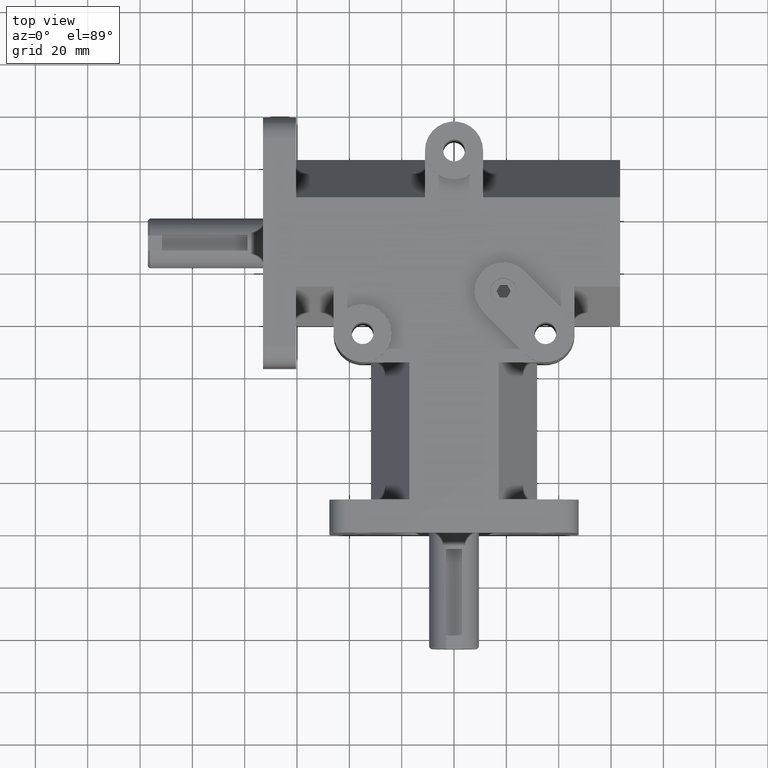
[diagram: clean part render]
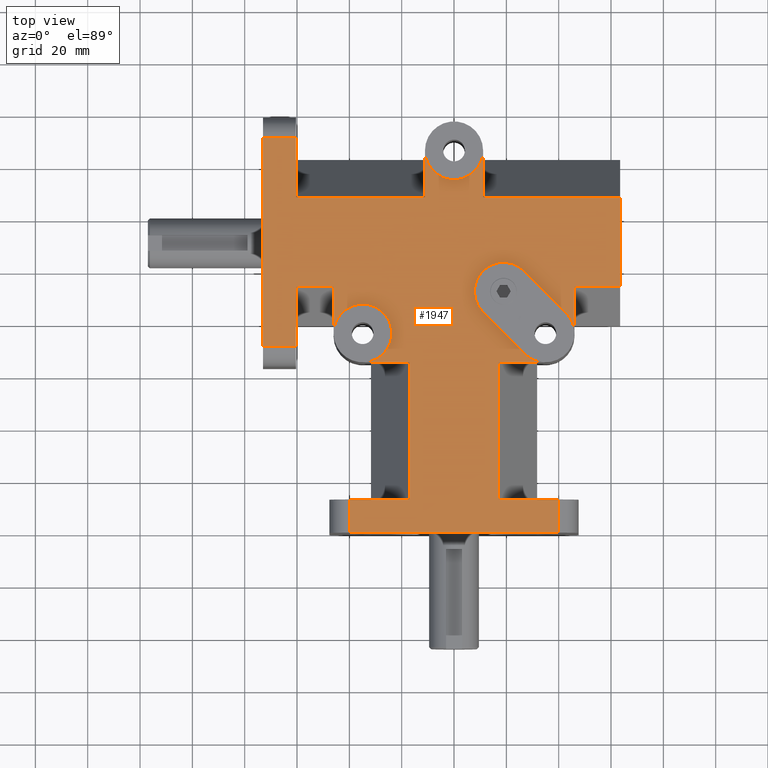
[diagram: same view with one face highlighted and labeled with its STEP entity id]
A machine part, top view. The second image highlights one B-rep face of the part: STEP entity #1947.
In plain terms, the highlighted planar face has unit normal (0, 0, 1).
Its self-contained STEP definition (entity closure, byte-faithful):
#72=PLANE('',#2121);
#165=FACE_OUTER_BOUND('',#290,.T.);
#290=EDGE_LOOP('',(#1488,#1489,#1490,#1491,#1492,#1493,#1494,#1495,#1496,
#1497,#1498,#1499,#1500,#1501,#1502,#1503,#1504,#1505,#1506,#1507,#1508,
#1509,#1510,#1511,#1512,#1513,#1514,#1515,#1516,#1517));
#416=LINE('',#2961,#607);
#421=LINE('',#2985,#612);
#426=LINE('',#3006,#617);
#428=LINE('',#3015,#619);
#431=LINE('',#3026,#622);
#439=LINE('',#3047,#630);
#441=LINE('',#3055,#632);
#442=LINE('',#3057,#633);
#443=LINE('',#3059,#634);
#444=LINE('',#3063,#635);
#445=LINE('',#3067,#636);
#446=LINE('',#3071,#637);
#447=LINE('',#3073,#638);
#448=LINE('',#3075,#639);
#449=LINE('',#3077,#640);
#450=LINE('',#3079,#641);
#451=LINE('',#3083,#642);
#452=LINE('',#3085,#643);
#453=LINE('',#3086,#644);
#454=LINE('',#3087,#645);
#455=LINE('',#3089,#646);
#456=LINE('',#3091,#647);
#457=LINE('',#3095,#648);
#458=LINE('',#3097,#649);
#459=LINE('',#3098,#650);
#607=VECTOR('',#2378,1.);
#612=VECTOR('',#2399,1.);
#617=VECTOR('',#2418,1.);
#619=VECTOR('',#2426,1.);
#622=VECTOR('',#2437,1.);
#630=VECTOR('',#2455,1.);
#632=VECTOR('',#2463,1.);
#633=VECTOR('',#2464,1.);
#634=VECTOR('',#2465,1.);
#635=VECTOR('',#2468,1.);
#636=VECTOR('',#2471,1.);
#637=VECTOR('',#2474,1.);
#638=VECTOR('',#2475,1.);
#639=VECTOR('',#2476,1.);
#640=VECTOR('',#2477,1.);
#641=VECTOR('',#2478,1.);
#642=VECTOR('',#2481,1.);
#643=VECTOR('',#2482,1.);
#644=VECTOR('',#2483,1.);
#645=VECTOR('',#2484,1.);
#646=VECTOR('',#2485,1.);
#647=VECTOR('',#2486,1.);
#648=VECTOR('',#2489,1.);
#649=VECTOR('',#2490,1.);
#650=VECTOR('',#2491,1.);
#816=CIRCLE('',#2122,11.1125);
#817=CIRCLE('',#2123,11.1125);
#818=CIRCLE('',#2124,11.1125);
#819=CIRCLE('',#2125,11.1125);
#820=CIRCLE('',#2126,11.1125);
#893=VERTEX_POINT('',#2954);
#896=VERTEX_POINT('',#2959);
#906=VERTEX_POINT('',#2982);
#907=VERTEX_POINT('',#2984);
#913=VERTEX_POINT('',#2999);
#916=VERTEX_POINT('',#3004);
#917=VERTEX_POINT('',#3008);
#920=VERTEX_POINT('',#3013);
#932=VERTEX_POINT('',#3045);
#935=VERTEX_POINT('',#3054);
#936=VERTEX_POINT('',#3056);
#937=VERTEX_POINT('',#3058);
#938=VERTEX_POINT('',#3060);
#939=VERTEX_POINT('',#3062);
#940=VERTEX_POINT('',#3064);
#941=VERTEX_POINT('',#3066);
#942=VERTEX_POINT('',#3068);
#943=VERTEX_POINT('',#3070);
#944=VERTEX_POINT('',#3072);
#945=VERTEX_POINT('',#3074);
#946=VERTEX_POINT('',#3076);
#947=VERTEX_POINT('',#3078);
#948=VERTEX_POINT('',#3080);
#949=VERTEX_POINT('',#3082);
#950=VERTEX_POINT('',#3084);
#951=VERTEX_POINT('',#3088);
#952=VERTEX_POINT('',#3090);
#953=VERTEX_POINT('',#3092);
#954=VERTEX_POINT('',#3094);
#955=VERTEX_POINT('',#3096);
#1102=EDGE_CURVE('',#896,#893,#416,.T.);
#1112=EDGE_CURVE('',#906,#907,#421,.T.);
#1122=EDGE_CURVE('',#916,#913,#426,.T.);
#1126=EDGE_CURVE('',#920,#917,#428,.T.);
#1131=EDGE_CURVE('',#893,#906,#431,.T.);
#1143=EDGE_CURVE('',#932,#916,#439,.T.);
#1147=EDGE_CURVE('',#935,#896,#441,.T.);
#1148=EDGE_CURVE('',#936,#935,#442,.T.);
#1149=EDGE_CURVE('',#937,#936,#443,.T.);
#1150=EDGE_CURVE('',#937,#938,#816,.T.);
#1151=EDGE_CURVE('',#938,#939,#444,.T.);
#1152=EDGE_CURVE('',#939,#940,#817,.T.);
#1153=EDGE_CURVE('',#940,#941,#445,.T.);
#1154=EDGE_CURVE('',#941,#942,#818,.T.);
#1155=EDGE_CURVE('',#943,#942,#446,.T.);
#1156=EDGE_CURVE('',#944,#943,#447,.T.);
#1157=EDGE_CURVE('',#944,#945,#448,.T.);
#1158=EDGE_CURVE('',#946,#945,#449,.T.);
#1159=EDGE_CURVE('',#947,#946,#450,.T.);
#1160=EDGE_CURVE('',#947,#948,#819,.T.);
#1161=EDGE_CURVE('',#949,#948,#451,.T.);
#1162=EDGE_CURVE('',#950,#949,#452,.T.);
#1163=EDGE_CURVE('',#917,#950,#453,.T.);
#1164=EDGE_CURVE('',#913,#920,#454,.T.);
#1165=EDGE_CURVE('',#951,#932,#455,.T.);
#1166=EDGE_CURVE('',#952,#951,#456,.T.);
#1167=EDGE_CURVE('',#952,#953,#820,.T.);
#1168=EDGE_CURVE('',#954,#953,#457,.T.);
#1169=EDGE_CURVE('',#955,#954,#458,.T.);
#1170=EDGE_CURVE('',#907,#955,#459,.T.);
#1488=ORIENTED_EDGE('',*,*,#1102,.F.);
#1489=ORIENTED_EDGE('',*,*,#1147,.F.);
#1490=ORIENTED_EDGE('',*,*,#1148,.F.);
#1491=ORIENTED_EDGE('',*,*,#1149,.F.);
#1492=ORIENTED_EDGE('',*,*,#1150,.T.);
#1493=ORIENTED_EDGE('',*,*,#1151,.T.);
#1494=ORIENTED_EDGE('',*,*,#1152,.T.);
#1495=ORIENTED_EDGE('',*,*,#1153,.T.);
#1496=ORIENTED_EDGE('',*,*,#1154,.T.);
#1497=ORIENTED_EDGE('',*,*,#1155,.F.);
#1498=ORIENTED_EDGE('',*,*,#1156,.F.);
#1499=ORIENTED_EDGE('',*,*,#1157,.T.);
#1500=ORIENTED_EDGE('',*,*,#1158,.F.);
#1501=ORIENTED_EDGE('',*,*,#1159,.F.);
#1502=ORIENTED_EDGE('',*,*,#1160,.T.);
#1503=ORIENTED_EDGE('',*,*,#1161,.F.);
#1504=ORIENTED_EDGE('',*,*,#1162,.F.);
#1505=ORIENTED_EDGE('',*,*,#1163,.F.);
#1506=ORIENTED_EDGE('',*,*,#1126,.F.);
#1507=ORIENTED_EDGE('',*,*,#1164,.F.);
#1508=ORIENTED_EDGE('',*,*,#1122,.F.);
#1509=ORIENTED_EDGE('',*,*,#1143,.F.);
#1510=ORIENTED_EDGE('',*,*,#1165,.F.);
#1511=ORIENTED_EDGE('',*,*,#1166,.F.);
#1512=ORIENTED_EDGE('',*,*,#1167,.T.);
#1513=ORIENTED_EDGE('',*,*,#1168,.F.);
#1514=ORIENTED_EDGE('',*,*,#1169,.F.);
#1515=ORIENTED_EDGE('',*,*,#1170,.F.);
#1516=ORIENTED_EDGE('',*,*,#1112,.F.);
#1517=ORIENTED_EDGE('',*,*,#1131,.F.);
#1947=ADVANCED_FACE('',(#165),#72,.T.);
#2121=AXIS2_PLACEMENT_3D('',#3053,#2461,#2462);
#2122=AXIS2_PLACEMENT_3D('',#3061,#2466,#2467);
#2123=AXIS2_PLACEMENT_3D('',#3065,#2469,#2470);
#2124=AXIS2_PLACEMENT_3D('',#3069,#2472,#2473);
#2125=AXIS2_PLACEMENT_3D('',#3081,#2479,#2480);
#2126=AXIS2_PLACEMENT_3D('',#3093,#2487,#2488);
#2378=DIRECTION('',(0.,-1.,0.));
#2399=DIRECTION('',(0.,1.,0.));
#2418=DIRECTION('',(-1.,0.,0.));
#2426=DIRECTION('',(1.,0.,0.));
#2437=DIRECTION('',(-1.,0.,0.));
#2455=DIRECTION('',(0.,-1.,0.));
#2461=DIRECTION('center_axis',(0.,0.,1.));
#2462=DIRECTION('ref_axis',(-1.,0.,0.));
#2463=DIRECTION('',(1.,0.,0.));
#2464=DIRECTION('',(0.,-1.,0.));
#2465=DIRECTION('',(-1.,0.,0.));
#2466=DIRECTION('center_axis',(0.,0.,-1.));
#2467=DIRECTION('ref_axis',(1.,0.,0.));
#2468=DIRECTION('',(-0.707106781186547,0.707106781186548,0.));
#2469=DIRECTION('center_axis',(0.,0.,-1.));
#2470=DIRECTION('ref_axis',(1.,0.,0.));
#2471=DIRECTION('',(0.707106781186547,-0.707106781186548,0.));
#2472=DIRECTION('center_axis',(0.,0.,-1.));
#2473=DIRECTION('ref_axis',(1.,0.,0.));
#2474=DIRECTION('',(0.,-1.,0.));
#2475=DIRECTION('',(-1.,0.,0.));
#2476=DIRECTION('',(0.,1.,0.));
#2477=DIRECTION('',(1.,0.,0.));
#2478=DIRECTION('',(0.,-1.,0.));
#2479=DIRECTION('center_axis',(0.,0.,-1.));
#2480=DIRECTION('ref_axis',(1.,0.,0.));
#2481=DIRECTION('',(0.,1.,0.));
#2482=DIRECTION('',(1.,0.,0.));
#2483=DIRECTION('',(0.,-1.,0.));
#2484=DIRECTION('',(0.,1.,0.));
#2485=DIRECTION('',(-1.,0.,0.));
#2486=DIRECTION('',(0.,1.,0.));
#2487=DIRECTION('center_axis',(0.,0.,-1.));
#2488=DIRECTION('ref_axis',(1.,0.,0.));
#2489=DIRECTION('',(-1.,0.,0.));
#2490=DIRECTION('',(0.,1.,0.));
#2491=DIRECTION('',(1.,0.,0.));
#2954=CARTESIAN_POINT('',(39.751,0.,31.75));
#2959=CARTESIAN_POINT('',(39.751,12.7,31.75));
#2961=CARTESIAN_POINT('',(39.751,41.3999528726981,31.75));
#2982=CARTESIAN_POINT('',(-39.751,0.,31.75));
#2984=CARTESIAN_POINT('',(-39.751,12.7,31.75));
#2985=CARTESIAN_POINT('',(-39.751,47.7499528726981,31.75));
#2999=CARTESIAN_POINT('',(-73.025,71.374,31.75));
#3004=CARTESIAN_POINT('',(-60.325,71.374,31.75));
#3006=CARTESIAN_POINT('',(-36.5125,71.374,31.75));
#3008=CARTESIAN_POINT('',(-60.325,150.876,31.75));
#3013=CARTESIAN_POINT('',(-73.025,150.876,31.75));
#3015=CARTESIAN_POINT('',(-30.1625,150.876,31.75));
#3026=CARTESIAN_POINT('',(-47.625,0.,31.75));
#3045=CARTESIAN_POINT('',(-60.325,94.03969,31.75));
#3047=CARTESIAN_POINT('',(-60.325,63.5,31.75));
#3053=CARTESIAN_POINT('Origin',(5.9538745461607E-15,82.7999057453963,31.75));
#3054=CARTESIAN_POINT('',(17.08531,12.7,31.75));
#3055=CARTESIAN_POINT('',(31.75,12.7,31.75));
#3056=CARTESIAN_POINT('',(17.08531,65.0875,31.75));
#3057=CARTESIAN_POINT('',(17.08531,47.7499528726981,31.75));
#3058=CARTESIAN_POINT('',(34.925,65.0875,31.75));
#3059=CARTESIAN_POINT('',(15.875,65.0875,31.75));
#3060=CARTESIAN_POINT('',(27.0672758940645,68.3422758940645,31.75));
#3061=CARTESIAN_POINT('Origin',(34.925,76.2,31.75));
#3062=CARTESIAN_POINT('',(11.0652758940645,84.3442758940645,31.75));
#3063=CARTESIAN_POINT('',(16.6860494577154,78.7235023304136,31.75));
#3064=CARTESIAN_POINT('',(26.7807241059355,100.059724105936,31.75));
#3065=CARTESIAN_POINT('Origin',(18.923,92.202,31.75));
#3066=CARTESIAN_POINT('',(42.7827241059355,84.0577241059355,31.75));
#3067=CARTESIAN_POINT('',(24.4004976695865,102.439950542285,31.75));
#3068=CARTESIAN_POINT('',(46.0375,76.1999999999999,31.75));
#3069=CARTESIAN_POINT('Origin',(34.925,76.2,31.75));
#3070=CARTESIAN_POINT('',(46.0375,94.03969,31.75));
#3071=CARTESIAN_POINT('',(46.0375,76.2,31.75));
#3072=CARTESIAN_POINT('',(63.5,94.03969,31.75));
#3073=CARTESIAN_POINT('',(23.01875,94.03969,31.75));
#3074=CARTESIAN_POINT('',(63.5,128.21031,31.75));
#3075=CARTESIAN_POINT('',(63.5,-18.1175245296725,31.75));
#3076=CARTESIAN_POINT('',(11.1125,128.21031,31.75));
#3077=CARTESIAN_POINT('',(30.1625,128.21031,31.75));
#3078=CARTESIAN_POINT('',(11.1125,146.05,31.75));
#3079=CARTESIAN_POINT('',(11.1125,112.837452872698,31.75));
#3080=CARTESIAN_POINT('',(-11.1125,146.05,31.75));
#3081=CARTESIAN_POINT('Origin',(0.,146.05,31.75));
#3082=CARTESIAN_POINT('',(-11.1125,128.21031,31.75));
#3083=CARTESIAN_POINT('',(-11.1125,142.875,31.75));
#3084=CARTESIAN_POINT('',(-60.325,128.21031,31.75));
#3085=CARTESIAN_POINT('',(-5.55625,128.21031,31.75));
#3086=CARTESIAN_POINT('',(-60.325,112.837452872698,31.75));
#3087=CARTESIAN_POINT('',(-73.025,63.5,31.75));
#3088=CARTESIAN_POINT('',(-46.0375,94.03969,31.75));
#3089=CARTESIAN_POINT('',(-30.1625,94.03969,31.75));
#3090=CARTESIAN_POINT('',(-46.0375,76.2,31.75));
#3091=CARTESIAN_POINT('',(-46.0375,81.0874528726981,31.75));
#3092=CARTESIAN_POINT('',(-34.925,65.0875,31.75));
#3093=CARTESIAN_POINT('Origin',(-34.925,76.2,31.75));
#3094=CARTESIAN_POINT('',(-17.08531,65.0875,31.75));
#3095=CARTESIAN_POINT('',(-31.75,65.0875,31.75));
#3096=CARTESIAN_POINT('',(-17.08531,12.7,31.75));
#3097=CARTESIAN_POINT('',(-17.08531,73.9437028726981,31.75));
#3098=CARTESIAN_POINT('',(-15.875,12.7,31.75));